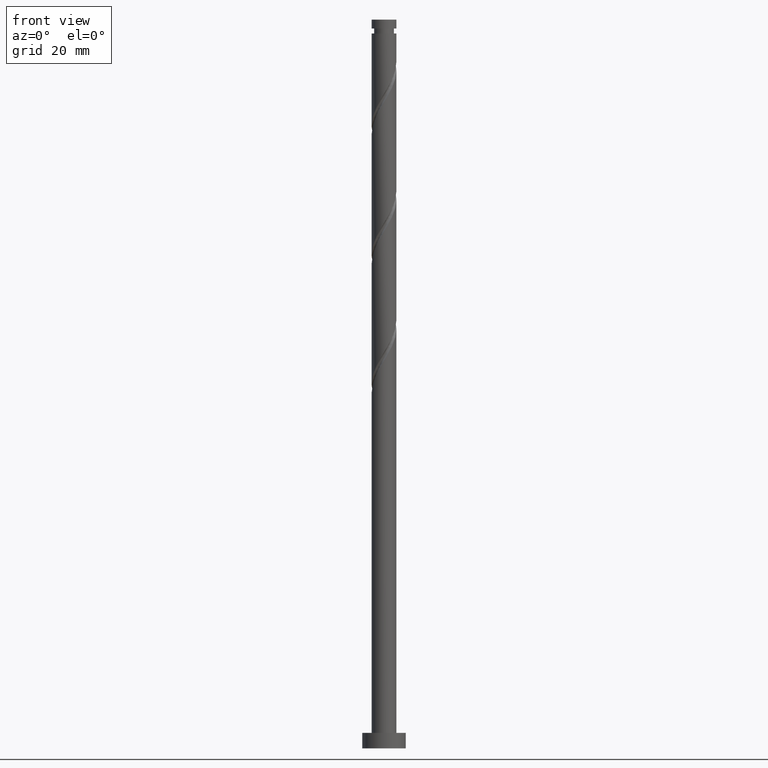
[diagram: clean part render]
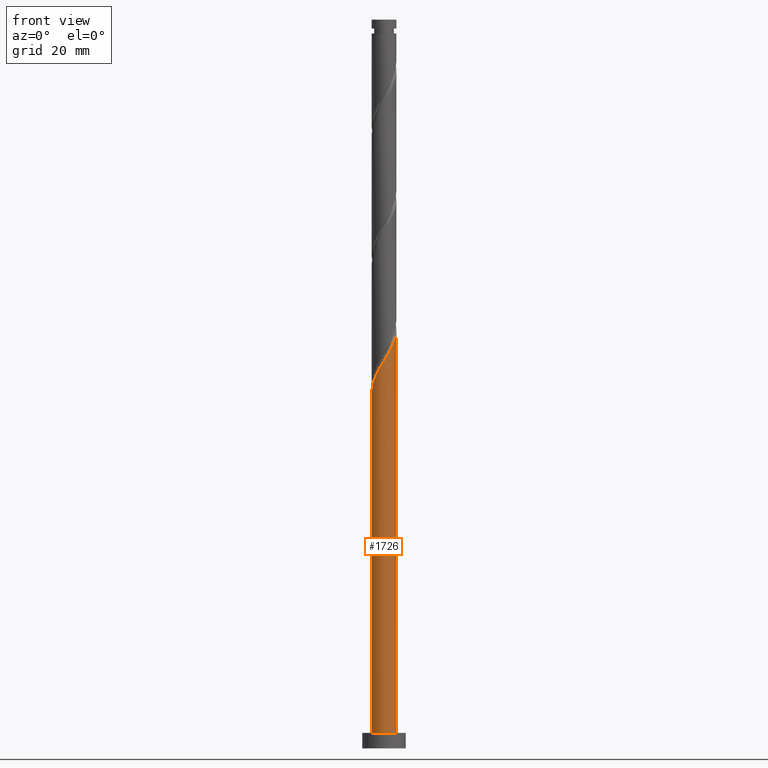
[diagram: same view with one face highlighted and labeled with its STEP entity id]
A machine part, front view. The second image highlights one B-rep face of the part: STEP entity #1726.
In plain terms, the highlighted cylindrical surface (edge-blend (fillet) strip) has radius 4 mm, axis along (-0, -0, -1).
Its self-contained STEP definition (entity closure, byte-faithful):
#25 = VECTOR ( 'NONE', #831, 1000.000000000000000 ) ;
#26 = DIRECTION ( 'NONE',  ( 0.000000000000000000, 0.000000000000000000, 1.000000000000000000 ) ) ;
#27 = CIRCLE ( 'NONE', #1086, 4.000000000000000000 ) ;
#65 = CARTESIAN_POINT ( 'NONE',  ( 1.710977332407542795, -3.615599060734971726, 127.9590325467837317 ) ) ;
#84 = VECTOR ( 'NONE', #964, 1000.000000000000000 ) ;
#91 = CARTESIAN_POINT ( 'NONE',  ( 3.869112783325352023, -1.125104012108400164, 133.5680069057580681 ) ) ;
#99 = CARTESIAN_POINT ( 'NONE',  ( 4.000000000000006217, -0.3250257541481788581, 134.9055124976461286 ) ) ;
#154 = VERTEX_POINT ( 'NONE', #422 ) ;
#161 = CARTESIAN_POINT ( 'NONE',  ( -3.642154467511935945, -1.723543908038585926, 117.5423658801170888 ) ) ;
#196 = DIRECTION ( 'NONE',  ( -0.000000000000000000, -0.000000000000000000, -1.000000000000000000 ) ) ;
#209 = CARTESIAN_POINT ( 'NONE',  ( 1.271964123916560885, -3.823349321684228919, 127.1577504955017162 ) ) ;
#227 = CARTESIAN_POINT ( 'NONE',  ( 0.3200157754540359778, -4.016650678315780709, 125.5551863929375855 ) ) ;
#239 = CARTESIAN_POINT ( 'NONE',  ( 4.000000000000005329, 3.140747091990197197E-15, 135.4452132349944407 ) ) ;
#250 = CARTESIAN_POINT ( 'NONE',  ( -0.1652574756069124517, -3.996584787885285817, 124.7539043416555558 ) ) ;
#259 = LINE ( 'NONE', #989, #25 ) ;
#296 = EDGE_CURVE ( 'NONE', #154, #768, #259, .T. ) ;
#307 = CARTESIAN_POINT ( 'NONE',  ( -3.948791133313483304, -0.8018362386540690556, 115.9398017775530150 ) ) ;
#365 = CARTESIAN_POINT ( 'NONE',  ( 3.487428383617971139, -2.018349830254860588, 131.9654428031940085 ) ) ;
#412 = EDGE_CURVE ( 'NONE', #768, #1431, #27, .T. ) ;
#422 = CARTESIAN_POINT ( 'NONE',  ( -4.000000000000006217, 7.463013328110039892E-15, 114.6118799016610836 ) ) ;
#451 = CARTESIAN_POINT ( 'NONE',  ( -4.000000000000006217, 7.463013328110039892E-15, 114.6118799016610836 ) ) ;
#461 = CARTESIAN_POINT ( 'NONE',  ( -2.773922925134612694, -2.881900693190638130, 119.9462120339632207 ) ) ;
#472 = DIRECTION ( 'NONE',  ( 1.000000000000000000, 0.000000000000000000, 0.000000000000000000 ) ) ;
#541 = CARTESIAN_POINT ( 'NONE',  ( 3.195247853079540512, -2.406323161462447402, 131.1641607519119361 ) ) ;
#558 = EDGE_CURVE ( 'NONE', #154, #910, #623, .T. ) ;
#585 = EDGE_CURVE ( 'NONE', #910, #1431, #816, .T. ) ;
#623 =( BOUNDED_CURVE ( )  B_SPLINE_CURVE ( 2, ( #451, #1481, #1030, #307, #1442, #161, #1172, #1725, #461, #1589, #661, #648, #671, #1088, #250, #227, #1380, #209, #65, #1211, #808, #1366, #541, #365, #822, #91, #942, #99, #239 ),
 .UNSPECIFIED., .F., .T. ) 
 B_SPLINE_CURVE_WITH_KNOTS ( ( 3, 2, 2, 2, 2, 2, 2, 2, 2, 2, 2, 2, 2, 2, 3 ),
 ( 0.05452716259738316779, 0.05769230769230770939, 0.06730769230769229061, 0.07692307692307687184, 0.08653846153846156408, 0.09615384615384614531, 0.1057692307692307265, 0.1153846153846154188, 0.1250000000000000000, 0.1346153846153845812, 0.1442307692307692735, 0.1538461538461538547, 0.1634615384615384359, 0.1730769230769231282, 0.1795271625973833551 ),
 .UNSPECIFIED. ) 
 CURVE ( )  GEOMETRIC_REPRESENTATION_ITEM ( )  RATIONAL_B_SPLINE_CURVE ( ( 0.9061636035682849588, 0.9069090390690736081, 0.9090909090909303769, 0.9024626128164336958, 0.9090909090909303769, 0.9024626128164336958, 0.9090909090909303769, 0.9024626128164336958, 0.9090909090909303769, 0.9024626128164336958, 0.9090909090909303769, 0.9024626128164336958, 0.9090909090909303769, 0.9024626128164336958, 0.9090909090909303769, 0.9024626128164336958, 0.9090909090909303769, 0.9024626128164336958, 0.9090909090909303769, 0.9024626128164336958, 0.9090909090909303769, 0.9024626128164336958, 0.9090909090909303769, 0.9024626128164336958, 0.9090909090909303769, 0.9024626128164336958, 0.9090909090909303769, 0.9046444828382902426, 0.9061636035682850698 ) ) 
 REPRESENTATION_ITEM ( '' )  );
#648 = CARTESIAN_POINT ( 'NONE',  ( -1.583270747538802148, -3.705286292331808173, 122.3500581878094096 ) ) ;
#661 = CARTESIAN_POINT ( 'NONE',  ( -2.003633787528300125, -3.462001104198992429, 121.5487761365273514 ) ) ;
#671 = CARTESIAN_POINT ( 'NONE',  ( -1.116900737103331487, -3.840902594893298883, 123.1513402390914393 ) ) ;
#693 = CARTESIAN_POINT ( 'NONE',  ( 4.000000000000000000, 4.898587196589412829E-16, 5.000000000000000000 ) ) ;
#768 = VERTEX_POINT ( 'NONE', #1243 ) ;
#772 = DIRECTION ( 'NONE',  ( -1.000000000000000000, 0.000000000000000000, 0.000000000000000000 ) ) ;
#808 = CARTESIAN_POINT ( 'NONE',  ( 2.526528931719818072, -3.101072646227875040, 129.5615966493478481 ) ) ;
#816 = LINE ( 'NONE', #1235, #84 ) ;
#822 = CARTESIAN_POINT ( 'NONE',  ( 3.678270583471661581, -1.571726921181628933, 132.7667248544760241 ) ) ;
#831 = DIRECTION ( 'NONE',  ( -0.000000000000000000, -0.000000000000000000, -1.000000000000000000 ) ) ;
#904 = CYLINDRICAL_SURFACE ( 'NONE', #1168, 4.000000000000000000 ) ;
#910 = VERTEX_POINT ( 'NONE', #1144 ) ;
#942 = CARTESIAN_POINT ( 'NONE',  ( 3.947525597521978291, -0.6457876252366412384, 134.3692889570401405 ) ) ;
#964 = DIRECTION ( 'NONE',  ( -0.000000000000000000, -0.000000000000000000, -1.000000000000000000 ) ) ;
#989 = CARTESIAN_POINT ( 'NONE',  ( -4.000000000000000000, 0.000000000000000000, 235.0000000000000284 ) ) ;
#1030 = CARTESIAN_POINT ( 'NONE',  ( -3.987364772516044376, -0.3176825001445928165, 115.1385197262709283 ) ) ;
#1069 = EDGE_LOOP ( 'NONE', ( #1176, #1364, #1514, #1438 ) ) ;
#1086 = AXIS2_PLACEMENT_3D ( 'NONE', #1318, #26, #472 ) ;
#1088 = CARTESIAN_POINT ( 'NONE',  ( -0.6505307266678609368, -3.976518897454789592, 123.9526222903734975 ) ) ;
#1144 = CARTESIAN_POINT ( 'NONE',  ( 4.000000000000005329, 3.140747091990197197E-15, 135.4452132349944407 ) ) ;
#1168 = AXIS2_PLACEMENT_3D ( 'NONE', #1630, #196, #772 ) ;
#1172 = CARTESIAN_POINT ( 'NONE',  ( -3.383001745131681837, -2.134314689176842972, 118.3436479313991612 ) ) ;
#1176 = ORIENTED_EDGE ( 'NONE', *, *, #585, .F. ) ;
#1211 = CARTESIAN_POINT ( 'NONE',  ( 2.149990540898526259, -3.407848799785715865, 128.7603145980658041 ) ) ;
#1235 = CARTESIAN_POINT ( 'NONE',  ( 4.000000000000000000, 4.898587196589412829E-16, 235.0000000000000284 ) ) ;
#1243 = CARTESIAN_POINT ( 'NONE',  ( -4.000000000000000000, 0.000000000000000000, 5.000000000000000000 ) ) ;
#1318 = CARTESIAN_POINT ( 'NONE',  ( 0.000000000000000000, 0.000000000000000000, 5.000000000000000000 ) ) ;
#1364 = ORIENTED_EDGE ( 'NONE', *, *, #558, .F. ) ;
#1366 = CARTESIAN_POINT ( 'NONE',  ( 2.903067322541110329, -2.794296492670036436, 130.3628787006299206 ) ) ;
#1380 = CARTESIAN_POINT ( 'NONE',  ( 0.7959899496852990142, -3.920000000000005258, 126.3564684442196580 ) ) ;
#1431 = VERTEX_POINT ( 'NONE', #693 ) ;
#1438 = ORIENTED_EDGE ( 'NONE', *, *, #412, .T. ) ;
#1442 = CARTESIAN_POINT ( 'NONE',  ( -3.795472800412709624, -1.262690073346326658, 116.7410838288350305 ) ) ;
#1474 = FACE_OUTER_BOUND ( 'NONE', #1069, .T. ) ;
#1481 = CARTESIAN_POINT ( 'NONE',  ( -4.000000000000006217, -0.1590925213470674726, 114.8760508172940717 ) ) ;
#1514 = ORIENTED_EDGE ( 'NONE', *, *, #296, .T. ) ;
#1589 = CARTESIAN_POINT ( 'NONE',  ( -2.423996827517798103, -3.218715916066176685, 120.7474940852452931 ) ) ;
#1630 = CARTESIAN_POINT ( 'NONE',  ( 0.000000000000000000, 0.000000000000000000, 235.0000000000000284 ) ) ;
#1725 = CARTESIAN_POINT ( 'NONE',  ( -3.123849022751426396, -2.545085470315099574, 119.1449299826811909 ) ) ;
#1726 = ADVANCED_FACE ( 'NONE', ( #1474 ), #904, .T. ) ;